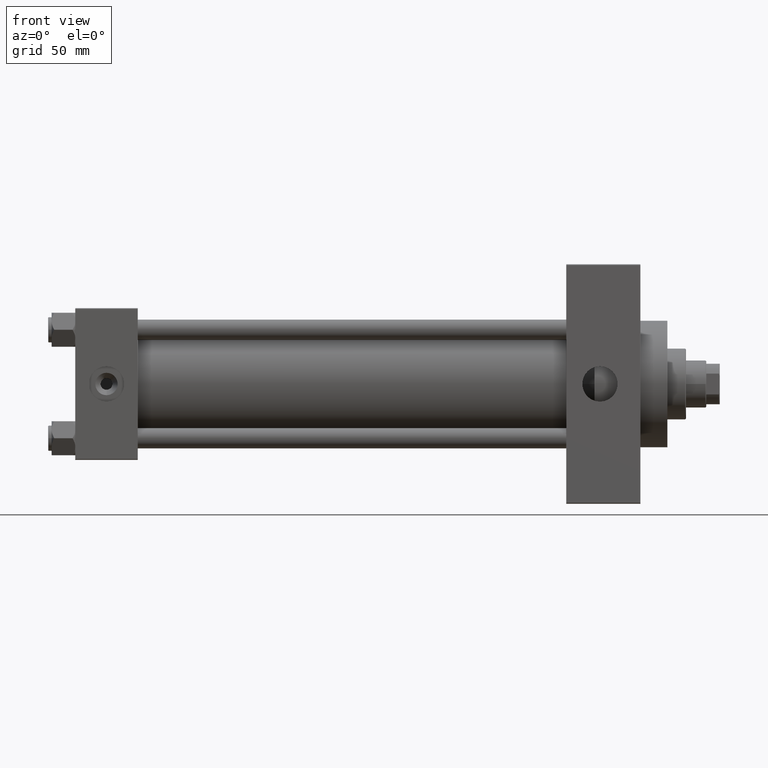
[diagram: clean part render]
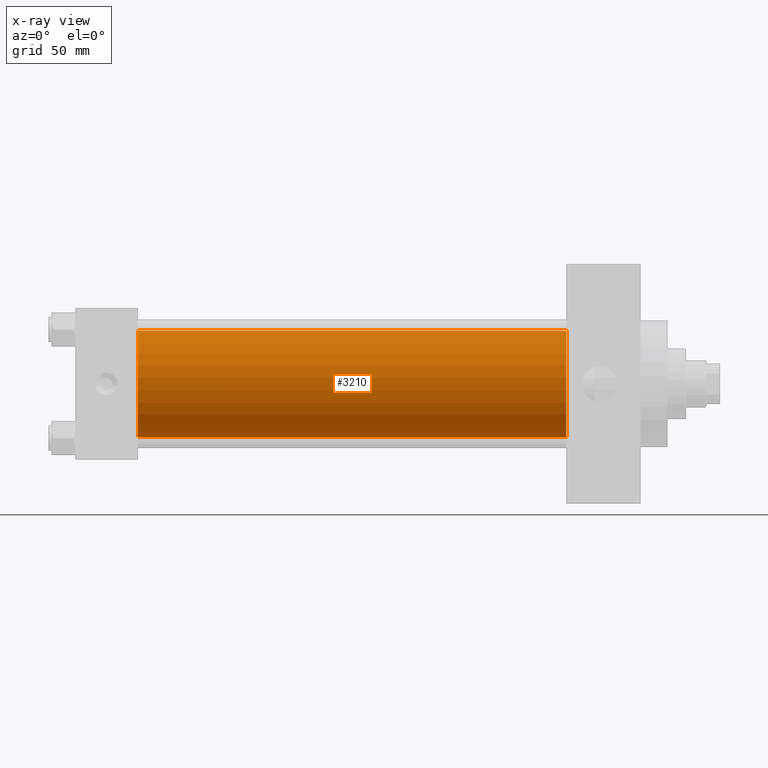
[diagram: x-ray — body ghosted, one internal face saturated and labeled with its STEP entity id]
A machine part, front view, then the same camera in x-ray: the body is ghosted and one INTERNAL B-rep face — a face not visible from any outside direction — is saturated and labeled: STEP entity #3210.
In plain terms, the highlighted cylindrical surface (partial cylindrical patch) has radius 31.5 mm, axis along (-1, -0, -0).
Its self-contained STEP definition (entity closure, byte-faithful):
#1427 = DIRECTION ( 'NONE',  ( -1.000000000000000000, -0.000000000000000000, -0.000000000000000000 ) ) ;
#1733 = ORIENTED_EDGE ( 'NONE', *, *, #15396, .F. ) ;
#3210 = ADVANCED_FACE ( 'NONE', ( #39430 ), #34726, .F. ) ;
#4837 = VERTEX_POINT ( 'NONE', #43296 ) ;
#5404 = DIRECTION ( 'NONE',  ( 0.000000000000000000, 0.000000000000000000, -1.000000000000000000 ) ) ;
#5432 = ORIENTED_EDGE ( 'NONE', *, *, #48531, .T. ) ;
#5433 = AXIS2_PLACEMENT_3D ( 'NONE', #38934, #46657, #12536 ) ;
#5688 = ORIENTED_EDGE ( 'NONE', *, *, #17970, .F. ) ;
#12536 = DIRECTION ( 'NONE',  ( 0.000000000000000000, 0.000000000000000000, 1.000000000000000000 ) ) ;
#13136 = VERTEX_POINT ( 'NONE', #14705 ) ;
#13937 = AXIS2_PLACEMENT_3D ( 'NONE', #32295, #16615, #5404 ) ;
#14705 = CARTESIAN_POINT ( 'NONE',  ( 37.00000000000000000, -2.602085213965210642E-15, 31.50000000000000000 ) ) ;
#15050 = VERTEX_POINT ( 'NONE', #40326 ) ;
#15396 = EDGE_CURVE ( 'NONE', #4837, #13136, #32806, .T. ) ;
#16371 = AXIS2_PLACEMENT_3D ( 'NONE', #47512, #47759, #28592 ) ;
#16615 = DIRECTION ( 'NONE',  ( 1.000000000000000000, 0.000000000000000000, 0.000000000000000000 ) ) ;
#17318 = ORIENTED_EDGE ( 'NONE', *, *, #36660, .T. ) ;
#17970 = EDGE_CURVE ( 'NONE', #13136, #15050, #48925, .T. ) ;
#21920 = CIRCLE ( 'NONE', #16371, 31.50000000000000000 ) ;
#24117 = CARTESIAN_POINT ( 'NONE',  ( 291.0000000000000000, -2.602085213965210642E-15, 31.50000000000000000 ) ) ;
#28592 = DIRECTION ( 'NONE',  ( 0.000000000000000000, 0.000000000000000000, -1.000000000000000000 ) ) ;
#30419 = EDGE_LOOP ( 'NONE', ( #5432, #17318, #5688, #1733 ) ) ;
#32295 = CARTESIAN_POINT ( 'NONE',  ( 37.00000000000000000, -2.602085213965210642E-15, 0.000000000000000000 ) ) ;
#32806 = LINE ( 'NONE', #24117, #44056 ) ;
#34213 = CARTESIAN_POINT ( 'NONE',  ( 291.0000000000000000, 1.255552203348951850E-15, -31.50000000000000000 ) ) ;
#34582 = LINE ( 'NONE', #37804, #41369 ) ;
#34726 = CYLINDRICAL_SURFACE ( 'NONE', #5433, 31.50000000000000000 ) ;
#34827 = DIRECTION ( 'NONE',  ( -1.000000000000000000, -0.000000000000000000, -0.000000000000000000 ) ) ;
#36660 = EDGE_CURVE ( 'NONE', #39426, #15050, #34582, .T. ) ;
#37804 = CARTESIAN_POINT ( 'NONE',  ( 291.0000000000000000, 1.255552203348951850E-15, -31.50000000000000000 ) ) ;
#38934 = CARTESIAN_POINT ( 'NONE',  ( 291.0000000000000000, -2.602085213965210642E-15, 0.000000000000000000 ) ) ;
#39426 = VERTEX_POINT ( 'NONE', #34213 ) ;
#39430 = FACE_OUTER_BOUND ( 'NONE', #30419, .T. ) ;
#40326 = CARTESIAN_POINT ( 'NONE',  ( 37.00000000000000000, 1.255552203348951850E-15, -31.50000000000000000 ) ) ;
#41369 = VECTOR ( 'NONE', #34827, 1000.000000000000000 ) ;
#43296 = CARTESIAN_POINT ( 'NONE',  ( 291.0000000000000000, -2.602085213965210642E-15, 31.50000000000000000 ) ) ;
#44056 = VECTOR ( 'NONE', #1427, 1000.000000000000000 ) ;
#46657 = DIRECTION ( 'NONE',  ( -1.000000000000000000, -0.000000000000000000, -0.000000000000000000 ) ) ;
#47512 = CARTESIAN_POINT ( 'NONE',  ( 291.0000000000000000, -2.602085213965210642E-15, 0.000000000000000000 ) ) ;
#47759 = DIRECTION ( 'NONE',  ( 1.000000000000000000, 0.000000000000000000, 0.000000000000000000 ) ) ;
#48531 = EDGE_CURVE ( 'NONE', #4837, #39426, #21920, .T. ) ;
#48925 = CIRCLE ( 'NONE', #13937, 31.50000000000000000 ) ;